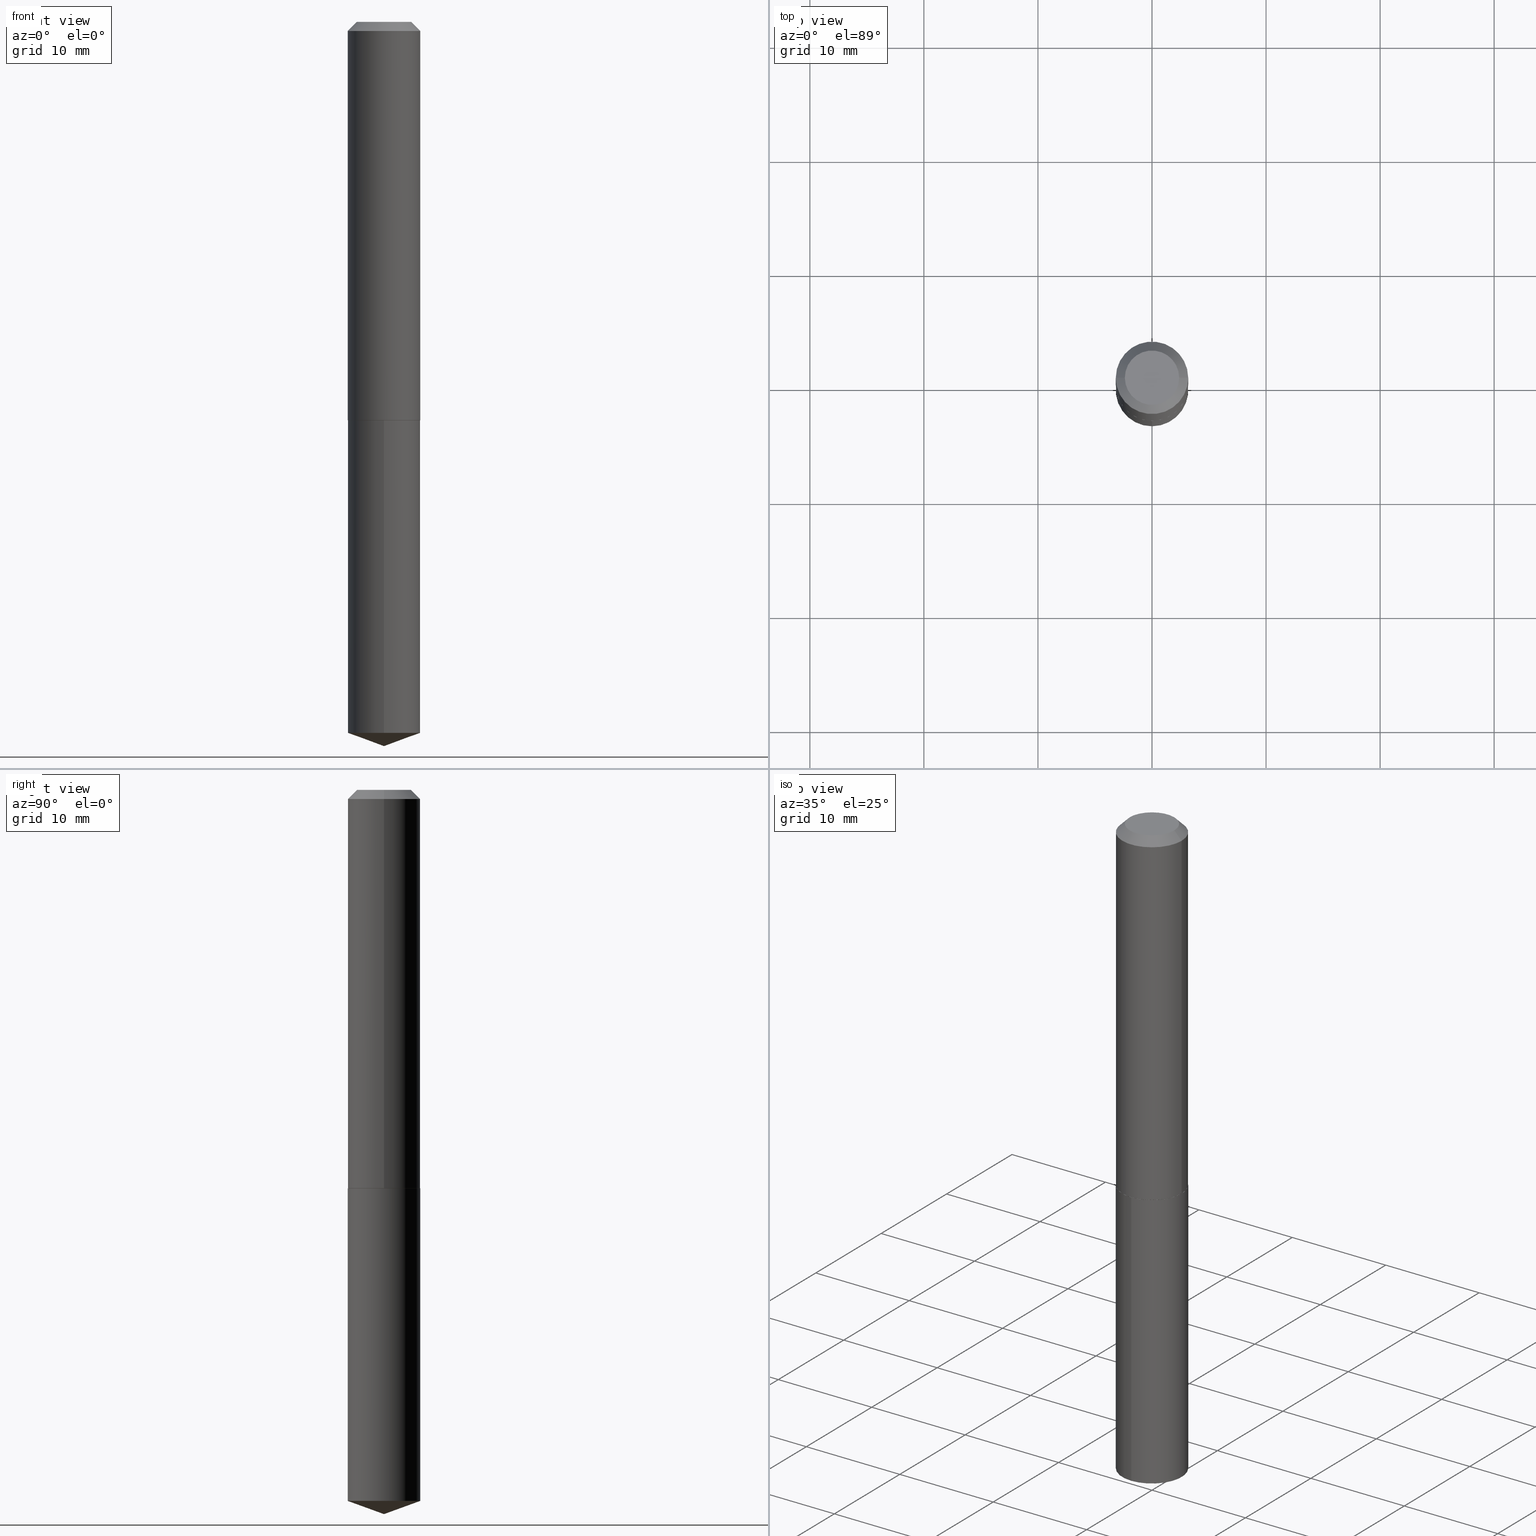
[diagram: canonical four-view strip — front | top / right | iso, engineering-drawing reading convention]
A machine part, canonical four-view strip (front | top / right | iso — engineering-drawing reading convention). The complete STEP part file that produces these views, byte-faithful:
ISO-10303-21;
HEADER;
FILE_DESCRIPTION (( 'STEP AP203' ),
    '1' );
FILE_NAME ('56148.STEP',
    '2024-04-22T20:42:17',
    ( '' ),
    ( '' ),
    'SwSTEP 2.0',
    'SolidWorks 2023',
    '' );
FILE_SCHEMA (( 'CONFIG_CONTROL_DESIGN' ));
ENDSEC;

DATA;
#1 = EDGE_LOOP ( 'NONE', ( #330, #33, #178, #58 ) ) ;
#2 = CARTESIAN_POINT ( 'NONE',  ( 7.642090019328604414E-31, -1.091087918388490513E-16, -0.03125000000000021511 ) ) ;
#3 = ORIENTED_EDGE ( 'NONE', *, *, #55, .F. ) ;
#4 = DIRECTION ( 'NONE',  ( -2.445468806185136597E-29, 3.491481338843145583E-15, 1.000000000000000000 ) ) ;
#5 = CARTESIAN_POINT ( 'NONE',  ( -2.335971725809276970E-47, 3.335148527799642567E-33, 9.552245033349363524E-19 ) ) ;
#6 = CARTESIAN_POINT ( 'NONE',  ( 0.1250000000000000000, -9.819791265496324395E-16, -0.03125000000000021511 ) ) ;
#7 = ADVANCED_FACE ( 'NONE', ( #240 ), #275, .F. ) ;
#8 = CARTESIAN_POINT ( 'NONE',  ( 6.113592622135694215E-29, -8.728817042871128141E-15, -2.500000000000000000 ) ) ;
#9 = DIRECTION ( 'NONE',  ( -1.000000000000000000, 6.982962677686265922E-15, -4.876176775795935793E-29 ) ) ;
#10 = ORIENTED_EDGE ( 'NONE', *, *, #172, .F. ) ;
#11 = DIRECTION ( 'NONE',  ( -2.445468806185136597E-29, 3.491481338843145583E-15, 1.000000000000000000 ) ) ;
#12 = CONICAL_SURFACE ( 'NONE', #144, 0.1250000000000000000, 0.7853981633974449483 ) ;
#13 = CARTESIAN_POINT ( 'NONE',  ( -9.016341287902560460E-28, 1.287329312043046058E-13, 36.87007874015748143 ) ) ;
#14 = CC_DESIGN_DATE_AND_TIME_ASSIGNMENT ( #349, #387, ( #42 ) ) ;
#15 = DIRECTION ( 'NONE',  ( 1.000000000000000000, -6.982962677686269077E-15, 0.000000000000000000 ) ) ;
#16 = AXIS2_PLACEMENT_3D ( 'NONE', #323, #201, #88 ) ;
#17 = AXIS2_PLACEMENT_3D ( 'NONE', #139, #117, #350 ) ;
#18 = CARTESIAN_POINT ( 'NONE',  ( 8.881784197001587589E-16, 0.1249999999999951983, -1.375000000000000444 ) ) ;
#19 = AXIS2_PLACEMENT_3D ( 'NONE', #101, #11, #99 ) ;
#20 = COORDINATED_UNIVERSAL_TIME_OFFSET ( 5, 0, .BEHIND. ) ;
#21 = ORIENTED_EDGE ( 'NONE', *, *, #246, .F. ) ;
#22 = CARTESIAN_POINT ( 'NONE',  ( -0.1250000000000000833, 8.881784197001258240E-16, -6.148668862818636431E-30 ) ) ;
#23 = LINE ( 'NONE', #72, #357 ) ;
#24 = PERSON_AND_ORGANIZATION ( #28, #232 ) ;
#25 = ORIENTED_EDGE ( 'NONE', *, *, #192, .F. ) ;
#26 = CC_DESIGN_APPROVAL ( #31, ( #327 ) ) ;
#27 = LINE ( 'NONE', #197, #36 ) ;
#28 = PERSON ( 'UNSPECIFIED', 'UNSPECIFIED', 'UNSPECIFIED', ('UNSPECIFIED'), ('UNSPECIFIED'), ('UNSPECIFIED') ) ;
#29 = AXIS2_PLACEMENT_3D ( 'NONE', #312, #256, #140 ) ;
#30 = FACE_OUTER_BOUND ( 'NONE', #1, .T. ) ;
#31 = APPROVAL ( #345, 'UNSPECIFIED' ) ;
#32 = ORIENTED_EDGE ( 'NONE', *, *, #187, .T. ) ;
#33 = ORIENTED_EDGE ( 'NONE', *, *, #55, .T. ) ;
#34 = VERTEX_POINT ( 'NONE', #35 ) ;
#35 = CARTESIAN_POINT ( 'NONE',  ( -0.09374999999999998612, 7.092071469525108711E-16, 9.552245033301675573E-19 ) ) ;
#36 = VECTOR ( 'NONE', #291, 39.37007874015748143 ) ;
#37 = AXIS2_PLACEMENT_3D ( 'NONE', #279, #316, #271 ) ;
#38 = DIRECTION ( 'NONE',  ( -6.982962677686268288E-15, -1.000000000000000000, 3.475157955500700492E-15 ) ) ;
#39 = DIRECTION ( 'NONE',  ( 2.445468806185136597E-29, -3.491481338843145583E-15, -1.000000000000000000 ) ) ;
#40 = CARTESIAN_POINT ( 'NONE',  ( -1.167985862904638485E-47, 1.667574263899821283E-33, 4.776122516674681762E-19 ) ) ;
#41 = DIRECTION ( 'NONE',  ( -6.982962677686268288E-15, -1.000000000000000000, 3.475157955500700492E-15 ) ) ;
#42 = SECURITY_CLASSIFICATION ( '', '', #198 ) ;
#43 = DIRECTION ( 'NONE',  ( 1.000000000000000000, -6.982962677686269077E-15, 0.000000000000000000 ) ) ;
#44 = EDGE_CURVE ( 'NONE', #136, #95, #190, .T. ) ;
#45 = PERSON_AND_ORGANIZATION ( #28, #232 ) ;
#46 = CC_DESIGN_DATE_AND_TIME_ASSIGNMENT ( #108, #131, ( #327 ) ) ;
#47 = CIRCLE ( 'NONE', #166, 0.1250000000000000000 ) ;
#48 = LINE ( 'NONE', #75, #338 ) ;
#49 = CLOSED_SHELL ( 'NONE', ( #124, #332, #238, #343, #7 ) ) ;
#50 = DATE_AND_TIME ( #322, #374 ) ;
#51 = ORIENTED_EDGE ( 'NONE', *, *, #372, .T. ) ;
#52 = EDGE_CURVE ( 'NONE', #365, #173, #56, .T. ) ;
#53 = AXIS2_PLACEMENT_3D ( 'NONE', #163, #281, #15 ) ;
#54 = PERSON_AND_ORGANIZATION ( #28, #232 ) ;
#55 = EDGE_CURVE ( 'NONE', #116, #228, #355, .T. ) ;
#56 = CIRCLE ( 'NONE', #128, 0.1250000000000001665 ) ;
#57 = VERTEX_POINT ( 'NONE', #352 ) ;
#58 = ORIENTED_EDGE ( 'NONE', *, *, #52, .F. ) ;
#59 = CONICAL_SURFACE ( 'NONE', #130, 108.1684023407340760, 1.221730476396033493 ) ;
#60 = LOCAL_TIME ( 16, 42, 17.00000000000000000, #285 ) ;
#61 = ORIENTED_EDGE ( 'NONE', *, *, #109, .F. ) ;
#62 = PRODUCT_DEFINITION_SHAPE ( 'NONE', 'NONE',  #327 ) ;
#63 = DIRECTION ( 'NONE',  ( 1.000000000000000000, -6.982962677686266711E-15, 4.876115938594587387E-29 ) ) ;
#64 = ORIENTED_EDGE ( 'NONE', *, *, #282, .F. ) ;
#65 = CARTESIAN_POINT ( 'NONE',  ( 0.000000000000000000, 0.000000000000000000, 0.000000000000000000 ) ) ;
#66 = CARTESIAN_POINT ( 'NONE',  ( 0.1245000000000002632, -5.670165694281267628E-15, -1.375000000000000000 ) ) ;
#67 = CIRCLE ( 'NONE', #284, 0.1250000000000000000 ) ;
#68 = EDGE_CURVE ( 'NONE', #270, #57, #27, .T. ) ;
#69 = VECTOR ( 'NONE', #102, 39.37007874015748143 ) ;
#70 = ORIENTED_EDGE ( 'NONE', *, *, #77, .F. ) ;
#71 = DIRECTION ( 'NONE',  ( 2.445437048854276901E-29, -3.491526817148451177E-15, -1.000000000000000000 ) ) ;
#72 = CARTESIAN_POINT ( 'NONE',  ( -0.1250000000000001665, -3.910862680539777405E-15, -1.374500000000000055 ) ) ;
#73 = ORIENTED_EDGE ( 'NONE', *, *, #44, .F. ) ;
#74 =( LENGTH_UNIT ( ) NAMED_UNIT ( * ) SI_UNIT ( $, .METRE. ) );
#75 = CARTESIAN_POINT ( 'NONE',  ( 0.1250000000000000833, -8.728703347107839305E-16, 6.095220969744923945E-30 ) ) ;
#76 = CALENDAR_DATE ( 2024, 22, 4 ) ;
#77 = EDGE_CURVE ( 'NONE', #333, #270, #137, .T. ) ;
#78 = CONICAL_SURFACE ( 'NONE', #286, 0.1250000000000000000, 0.7853981633974449483 ) ;
#79 = APPROVAL_ROLE ( '' ) ;
#80 = CARTESIAN_POINT ( 'NONE',  ( 6.113592622135694215E-29, -8.728817042871129719E-15, -2.500000000000000000 ) ) ;
#81 = PERSON_AND_ORGANIZATION ( #28, #232 ) ;
#82 = ORIENTED_EDGE ( 'NONE', *, *, #192, .T. ) ;
#83 = EDGE_CURVE ( 'NONE', #57, #95, #182, .T. ) ;
#84 = EDGE_LOOP ( 'NONE', ( #119, #260 ) ) ;
#85 = DIRECTION ( 'NONE',  ( -2.445468806185136597E-29, 3.491481338843145583E-15, 1.000000000000000000 ) ) ;
#86 = EDGE_LOOP ( 'NONE', ( #25, #51, #146, #363 ) ) ;
#87 = CARTESIAN_POINT ( 'NONE',  ( 0.1250000000000000000, -9.666710415602905459E-16, -0.03125000000000021511 ) ) ;
#88 = DIRECTION ( 'NONE',  ( -6.982962677686265922E-15, -1.000000000000000000, 4.370956789862821150E-15 ) ) ;
#89 = EDGE_LOOP ( 'NONE', ( #147, #220, #206, #61 ) ) ;
#90 = VERTEX_POINT ( 'NONE', #360 ) ;
#91 = CYLINDRICAL_SURFACE ( 'NONE', #174, 0.1250000000000000000 ) ;
#92 = DIRECTION ( 'NONE',  ( -2.445437048854277462E-29, 3.491526817148451177E-15, 1.000000000000000000 ) ) ;
#93 = DIRECTION ( 'NONE',  ( -6.982962677686265922E-15, -1.000000000000000000, 4.370956789862821150E-15 ) ) ;
#94 = AXIS2_PLACEMENT_3D ( 'NONE', #226, #168, #191 ) ;
#95 = VERTEX_POINT ( 'NONE', #149 ) ;
#96 = DESIGN_CONTEXT ( 'detailed design', #207, 'design' ) ;
#97 = MANIFOLD_SOLID_BREP ( 'Body-Move/Copy2[2]', #326 ) ;
#98 = ORIENTED_EDGE ( 'NONE', *, *, #372, .F. ) ;
#99 = DIRECTION ( 'NONE',  ( 1.000000000000000000, -6.982962677686266711E-15, 0.000000000000000000 ) ) ;
#100 = APPROVAL_PERSON_ORGANIZATION ( #264, #31, #344 ) ;
#101 = CARTESIAN_POINT ( 'NONE',  ( 7.642090019328604414E-31, -1.091087918388490513E-16, -0.03125000000000021511 ) ) ;
#102 = DIRECTION ( 'NONE',  ( -0.7071067811865451302, 2.468850131082231817E-15, -0.7071067811865499042 ) ) ;
#103 = DIRECTION ( 'NONE',  ( -0.7071067811865474617, 7.493145998870352582E-15, 0.7071067811865474617 ) ) ;
#104 = CALENDAR_DATE ( 2024, 22, 4 ) ;
#105 = ORIENTED_EDGE ( 'NONE', *, *, #370, .T. ) ;
#106 = APPROVAL_STATUS ( 'not_yet_approved' ) ;
#107 = AXIS2_PLACEMENT_3D ( 'NONE', #273, #121, #258 ) ;
#108 = DATE_AND_TIME ( #324, #171 ) ;
#109 = EDGE_CURVE ( 'NONE', #90, #388, #274, .T. ) ;
#110 = EDGE_CURVE ( 'NONE', #95, #57, #114, .T. ) ;
#111 = PERSON_AND_ORGANIZATION_ROLE ( 'creator' ) ;
#112 = ORIENTED_EDGE ( 'NONE', *, *, #68, .T. ) ;
#113 = EDGE_CURVE ( 'NONE', #270, #136, #67, .T. ) ;
#114 = CIRCLE ( 'NONE', #390, 0.1250000000000000000 ) ;
#115 = CARTESIAN_POINT ( 'NONE',  ( 3.361296874101470580E-29, -4.799041100239904215E-15, -1.374500000000000055 ) ) ;
#116 = VERTEX_POINT ( 'NONE', #244 ) ;
#117 = DIRECTION ( 'NONE',  ( 0.000000000000000000, 0.000000000000000000, 1.000000000000000000 ) ) ;
#118 = ORIENTED_EDGE ( 'NONE', *, *, #180, .T. ) ;
#119 = ORIENTED_EDGE ( 'NONE', *, *, #83, .T. ) ;
#120 = DIRECTION ( 'NONE',  ( 0.7071067811865451302, -7.319954787623248157E-15, -0.7071067811865499042 ) ) ;
#121 = DIRECTION ( 'NONE',  ( -2.445468806185136597E-29, 3.491481338843145583E-15, 1.000000000000000000 ) ) ;
#122 = PERSON_AND_ORGANIZATION ( #28, #232 ) ;
#123 = FACE_OUTER_BOUND ( 'NONE', #151, .T. ) ;
#124 = ADVANCED_FACE ( 'NONE', ( #368 ), #91, .T. ) ;
#125 = AXIS2_PLACEMENT_3D ( 'NONE', #179, #371, #93 ) ;
#126 = APPLICATION_PROTOCOL_DEFINITION ( 'international standard', 'config_control_design', 1994, #156 ) ;
#127 = CARTESIAN_POINT ( 'NONE',  ( -0.1250000000000001665, -3.910862680539777405E-15, -1.374500000000000055 ) ) ;
#128 = AXIS2_PLACEMENT_3D ( 'NONE', #133, #252, #43 ) ;
#129 = DIRECTION ( 'NONE',  ( 0.7071067811865474617, -2.468850131082256666E-15, 0.7071067811865474617 ) ) ;
#130 = AXIS2_PLACEMENT_3D ( 'NONE', #13, #311, #41 ) ;
#131 = DATE_TIME_ROLE ( 'creation_date' ) ;
#132 = EDGE_LOOP ( 'NONE', ( #334, #300, #10 ) ) ;
#133 = CARTESIAN_POINT ( 'NONE',  ( 3.361296874101470580E-29, -4.799041100239904215E-15, -1.374500000000000055 ) ) ;
#134 = ORIENTED_EDGE ( 'NONE', *, *, #187, .F. ) ;
#135 = PERSON_AND_ORGANIZATION_ROLE ( 'design_owner' ) ;
#136 = VERTEX_POINT ( 'NONE', #283 ) ;
#137 = LINE ( 'NONE', #80, #255 ) ;
#138 = COORDINATED_UNIVERSAL_TIME_OFFSET ( 5, 0, .BEHIND. ) ;
#139 = CARTESIAN_POINT ( 'NONE',  ( 0.000000000000000000, 0.000000000000000000, 0.000000000000000000 ) ) ;
#140 = DIRECTION ( 'NONE',  ( 1.000000000000000000, -6.982962677686267499E-15, 0.000000000000000000 ) ) ;
#141 = APPLICATION_PROTOCOL_DEFINITION ( 'international standard', 'config_control_design', 1994, #207 ) ;
#142 = CC_DESIGN_PERSON_AND_ORGANIZATION_ASSIGNMENT ( #122, #135, ( #314 ) ) ;
#143 = EDGE_LOOP ( 'NONE', ( #105, #294, #21, #243 ) ) ;
#144 = AXIS2_PLACEMENT_3D ( 'NONE', #290, #341, #158 ) ;
#145 = APPROVAL_PERSON_ORGANIZATION ( #81, #378, #79 ) ;
#146 = ORIENTED_EDGE ( 'NONE', *, *, #246, .T. ) ;
#147 = ORIENTED_EDGE ( 'NONE', *, *, #263, .F. ) ;
#148 = CYLINDRICAL_SURFACE ( 'NONE', #373, 0.1250000000000000833 ) ;
#149 = CARTESIAN_POINT ( 'NONE',  ( 8.881784197001853830E-16, 0.1249999999999951983, -1.375000000000000444 ) ) ;
#150 = CC_DESIGN_PERSON_AND_ORGANIZATION_ASSIGNMENT ( #321, #266, ( #348 ) ) ;
#151 = EDGE_LOOP ( 'NONE', ( #73, #358, #112, #268 ) ) ;
#152 = DIRECTION ( 'NONE',  ( 1.000000000000000000, -6.982962677686266711E-15, 4.876115938594587387E-29 ) ) ;
#153 = AXIS2_PLACEMENT_3D ( 'NONE', #40, #280, #9 ) ;
#154 = FACE_OUTER_BOUND ( 'NONE', #143, .T. ) ;
#155 = AXIS2_PLACEMENT_3D ( 'NONE', #313, #335, #152 ) ;
#156 = APPLICATION_CONTEXT ( 'configuration controlled 3d designs of mechanical parts and assemblies' ) ;
#157 = DIRECTION ( 'NONE',  ( -1.000000000000000000, 6.982962677686266711E-15, 0.000000000000000000 ) ) ;
#158 = DIRECTION ( 'NONE',  ( -1.000000000000000000, 6.982962677686266711E-15, 0.000000000000000000 ) ) ;
#159 = DIRECTION ( 'NONE',  ( -6.982962677686265922E-15, -1.000000000000000000, 4.370956789862821150E-15 ) ) ;
#160 = EDGE_LOOP ( 'NONE', ( #70, #118, #223 ) ) ;
#161 = CARTESIAN_POINT ( 'NONE',  ( 3.362519608504562260E-29, -4.800786840909324930E-15, -1.375000000000000000 ) ) ;
#162 = PLANE ( 'NONE',  #153 ) ;
#163 = CARTESIAN_POINT ( 'NONE',  ( 3.361296874101470580E-29, -4.799041100239904215E-15, -1.374500000000000055 ) ) ;
#164 = FACE_OUTER_BOUND ( 'NONE', #231, .T. ) ;
#165 = PERSON_AND_ORGANIZATION_ROLE ( 'classification_officer' ) ;
#166 = AXIS2_PLACEMENT_3D ( 'NONE', #224, #253, #381 ) ;
#167 = AXIS2_PLACEMENT_3D ( 'NONE', #183, #305, #38 ) ;
#168 = DIRECTION ( 'NONE',  ( -2.445468806185136597E-29, 3.491481338843145583E-15, 1.000000000000000000 ) ) ;
#169 = LINE ( 'NONE', #342, #184 ) ;
#170 = APPROVAL_DATE_TIME ( #50, #378 ) ;
#171 = LOCAL_TIME ( 16, 42, 17.00000000000000000, #318 ) ;
#172 = EDGE_CURVE ( 'NONE', #136, #270, #47, .T. ) ;
#173 = VERTEX_POINT ( 'NONE', #375 ) ;
#174 = AXIS2_PLACEMENT_3D ( 'NONE', #351, #385, #159 ) ;
#175 = ORIENTED_EDGE ( 'NONE', *, *, #216, .F. ) ;
#176 = FACE_OUTER_BOUND ( 'NONE', #89, .T. ) ;
#177 = EDGE_CURVE ( 'NONE', #173, #388, #48, .T. ) ;
#178 = ORIENTED_EDGE ( 'NONE', *, *, #282, .T. ) ;
#179 = CARTESIAN_POINT ( 'NONE',  ( 3.362519608504562260E-29, -4.800786840909324930E-15, -1.375000000000000000 ) ) ;
#180 = EDGE_CURVE ( 'NONE', #333, #136, #169, .T. ) ;
#181 = PLANE ( 'NONE',  #37 ) ;
#182 = CIRCLE ( 'NONE', #16, 0.1250000000000000000 ) ;
#183 = CARTESIAN_POINT ( 'NONE',  ( -9.016341287902560460E-28, 1.287329312043046058E-13, 36.87007874015748143 ) ) ;
#184 = VECTOR ( 'NONE', #317, 39.37007874015748143 ) ;
#185 = EDGE_CURVE ( 'NONE', #116, #365, #23, .T. ) ;
#186 = DIMENSIONAL_EXPONENTS ( 1.000000000000000000, 0.000000000000000000, 0.000000000000000000, 0.000000000000000000, 0.000000000000000000, 0.000000000000000000, 0.000000000000000000 ) ;
#187 = EDGE_CURVE ( 'NONE', #228, #116, #267, .T. ) ;
#188 =( NAMED_UNIT ( * ) SI_UNIT ( $, .STERADIAN. ) SOLID_ANGLE_UNIT ( ) );
#189 = LOCAL_TIME ( 16, 42, 17.00000000000000000, #234 ) ;
#190 = LINE ( 'NONE', #18, #219 ) ;
#191 = DIRECTION ( 'NONE',  ( 1.000000000000000000, -6.982962677686267499E-15, 0.000000000000000000 ) ) ;
#192 = EDGE_CURVE ( 'NONE', #353, #34, #319, .T. ) ;
#193 = FACE_OUTER_BOUND ( 'NONE', #132, .T. ) ;
#194 = CALENDAR_DATE ( 2024, 22, 4 ) ;
#195 = DIRECTION ( 'NONE',  ( -2.445437048854277742E-29, 3.491526817148451177E-15, 1.000000000000000000 ) ) ;
#196 = APPROVAL_DATE_TIME ( #227, #367 ) ;
#197 = CARTESIAN_POINT ( 'NONE',  ( -8.728703347107496150E-16, -0.1250000000000048017, -1.374999999999999334 ) ) ;
#198 = SECURITY_CLASSIFICATION_LEVEL ( 'unclassified' ) ;
#199 = FACE_OUTER_BOUND ( 'NONE', #160, .T. ) ;
#200 = DIRECTION ( 'NONE',  ( -6.561838499445207162E-15, -0.9396926207859082059, 0.3420201433256693790 ) ) ;
#201 = DIRECTION ( 'NONE',  ( -2.445437048854277462E-29, 3.491526817148451177E-15, 1.000000000000000000 ) ) ;
#202 = DATE_AND_TIME ( #194, #189 ) ;
#203 = VECTOR ( 'NONE', #129, 39.37007874015748854 ) ;
#204 = ORIENTED_EDGE ( 'NONE', *, *, #83, .F. ) ;
#205 = AXIS2_PLACEMENT_3D ( 'NONE', #5, #209, #63 ) ;
#206 = ORIENTED_EDGE ( 'NONE', *, *, #177, .T. ) ;
#207 = APPLICATION_CONTEXT ( 'configuration controlled 3d designs of mechanical parts and assemblies' ) ;
#208 = EDGE_LOOP ( 'NONE', ( #32, #307, #329, #64 ) ) ;
#209 = DIRECTION ( 'NONE',  ( -2.445468806185136597E-29, 3.491481338843145583E-15, 1.000000000000000000 ) ) ;
#210 = DIRECTION ( 'NONE',  ( -6.982962677686265922E-15, -1.000000000000000000, 4.370956789862821150E-15 ) ) ;
#211 = ORIENTED_EDGE ( 'NONE', *, *, #113, .T. ) ;
#212 = DIRECTION ( 'NONE',  ( 1.000000000000000000, -6.982962677686269077E-15, 0.000000000000000000 ) ) ;
#213 = FACE_OUTER_BOUND ( 'NONE', #340, .T. ) ;
#214 = DIRECTION ( 'NONE',  ( -6.982962677686265922E-15, -1.000000000000000000, 4.370956789862821150E-15 ) ) ;
#215 = FACE_OUTER_BOUND ( 'NONE', #86, .T. ) ;
#216 = EDGE_CURVE ( 'NONE', #34, #353, #379, .T. ) ;
#217 = AXIS2_PLACEMENT_3D ( 'NONE', #161, #71, #302 ) ;
#218 = CARTESIAN_POINT ( 'NONE',  ( 0.09374999999999998612, -8.049213644256857164E-16, 9.552245033400394890E-19 ) ) ;
#219 = VECTOR ( 'NONE', #195, 39.37007874015748143 ) ;
#220 = ORIENTED_EDGE ( 'NONE', *, *, #52, .T. ) ;
#221 =( CONVERSION_BASED_UNIT ( 'INCH', #278 ) LENGTH_UNIT ( ) NAMED_UNIT ( #186 ) );
#222 = ADVANCED_FACE ( 'NONE', ( #176 ), #148, .T. ) ;
#223 = ORIENTED_EDGE ( 'NONE', *, *, #113, .F. ) ;
#224 = CARTESIAN_POINT ( 'NONE',  ( 6.002378001521283483E-29, -8.569903031003303403E-15, -2.454503720716725290 ) ) ;
#225 = ADVANCED_FACE ( 'NONE', ( #213 ), #181, .F. ) ;
#226 = CARTESIAN_POINT ( 'NONE',  ( 3.362519608504562260E-29, -4.800786840909324930E-15, -1.375000000000000000 ) ) ;
#227 = DATE_AND_TIME ( #76, #249 ) ;
#228 = VERTEX_POINT ( 'NONE', #66 ) ;
#229 = ADVANCED_FACE ( 'NONE', ( #336 ), #12, .T. ) ;
#230 = PERSON_AND_ORGANIZATION ( #28, #232 ) ;
#231 = EDGE_LOOP ( 'NONE', ( #269, #82 ) ) ;
#232 = ORGANIZATION ( 'UNSPECIFIED', 'UNSPECIFIED', '' ) ;
#233 = MECHANICAL_CONTEXT ( 'NONE', #156, 'mechanical' ) ;
#234 = COORDINATED_UNIVERSAL_TIME_OFFSET ( 5, 0, .BEHIND. ) ;
#235 = PRODUCT_RELATED_PRODUCT_CATEGORY ( 'detail', '', ( #314 ) ) ;
#236 = AXIS2_PLACEMENT_3D ( 'NONE', #2, #85, #369 ) ;
#237 = AXIS2_PLACEMENT_3D ( 'NONE', #115, #239, #362 ) ;
#238 = ADVANCED_FACE ( 'NONE', ( #193 ), #59, .T. ) ;
#239 = DIRECTION ( 'NONE',  ( -2.445468806185136597E-29, 3.491481338843145583E-15, 1.000000000000000000 ) ) ;
#240 = FACE_OUTER_BOUND ( 'NONE', #84, .T. ) ;
#241 = CARTESIAN_POINT ( 'NONE',  ( 3.362519608504562260E-29, -4.800786840909324930E-15, -1.375000000000000000 ) ) ;
#242 = EDGE_LOOP ( 'NONE', ( #98, #175, #366, #376 ) ) ;
#243 = ORIENTED_EDGE ( 'NONE', *, *, #177, .F. ) ;
#244 = CARTESIAN_POINT ( 'NONE',  ( -0.1245000000000002632, -3.913511907713887817E-15, -1.375000000000000000 ) ) ;
#245 = DIRECTION ( 'NONE',  ( 1.000000000000000000, -6.982962677686266711E-15, 4.876176775795935793E-29 ) ) ;
#246 = EDGE_CURVE ( 'NONE', #388, #90, #306, .T. ) ;
#247 = CYLINDRICAL_SURFACE ( 'NONE', #125, 0.1250000000000000000 ) ;
#248 = LINE ( 'NONE', #22, #377 ) ;
#249 = LOCAL_TIME ( 16, 42, 17.00000000000000000, #138 ) ;
#250 = UNCERTAINTY_MEASURE_WITH_UNIT (LENGTH_MEASURE( 1.000000000000000082E-05 ), #221, 'distance_accuracy_value', 'NONE');
#251 = ADVANCED_FACE ( 'NONE', ( #164 ), #162, .F. ) ;
#252 = DIRECTION ( 'NONE',  ( -2.445468806185136597E-29, 3.491481338843145583E-15, 1.000000000000000000 ) ) ;
#253 = DIRECTION ( 'NONE',  ( -2.445437048854277462E-29, 3.491526817148451177E-15, 1.000000000000000000 ) ) ;
#254 = LINE ( 'NONE', #87, #356 ) ;
#255 = VECTOR ( 'NONE', #200, 39.37007874015748854 ) ;
#256 = DIRECTION ( 'NONE',  ( -2.445468806185136597E-29, 3.491481338843145583E-15, 1.000000000000000000 ) ) ;
#257 = CC_DESIGN_PERSON_AND_ORGANIZATION_ASSIGNMENT ( #54, #111, ( #327 ) ) ;
#258 = DIRECTION ( 'NONE',  ( 1.000000000000000000, -6.982962677686266711E-15, 4.876176775795935793E-29 ) ) ;
#259 = PERSON_AND_ORGANIZATION_ROLE ( 'creator' ) ;
#260 = ORIENTED_EDGE ( 'NONE', *, *, #110, .T. ) ;
#261 = LINE ( 'NONE', #287, #203 ) ;
#262 = SHAPE_DEFINITION_REPRESENTATION ( #62, #315 ) ;
#263 = EDGE_CURVE ( 'NONE', #365, #90, #248, .T. ) ;
#264 = PERSON_AND_ORGANIZATION ( #28, #232 ) ;
#265 = EDGE_CURVE ( 'NONE', #34, #90, #295, .T. ) ;
#266 = PERSON_AND_ORGANIZATION_ROLE ( 'design_supplier' ) ;
#267 = CIRCLE ( 'NONE', #94, 0.1245000000000002632 ) ;
#268 = ORIENTED_EDGE ( 'NONE', *, *, #110, .F. ) ;
#269 = ORIENTED_EDGE ( 'NONE', *, *, #216, .T. ) ;
#270 = VERTEX_POINT ( 'NONE', #346 ) ;
#271 = DIRECTION ( 'NONE',  ( 1.000000000000000000, -6.982962677686265922E-15, 4.876176775795935793E-29 ) ) ;
#272 = CONICAL_SURFACE ( 'NONE', #304, 0.1250000000000001665, 0.7853981633974482790 ) ;
#273 = CARTESIAN_POINT ( 'NONE',  ( 0.000000000000000000, 0.000000000000000000, 0.000000000000000000 ) ) ;
#274 = CIRCLE ( 'NONE', #236, 0.1250000000000000000 ) ;
#275 = PLANE ( 'NONE',  #217 ) ;
#276 = DIRECTION ( 'NONE',  ( -2.445468806185136877E-29, 3.491481338843145188E-15, 1.000000000000000000 ) ) ;
#277 = CC_DESIGN_SECURITY_CLASSIFICATION ( #42, ( #348 ) ) ;
#278 = LENGTH_MEASURE_WITH_UNIT ( LENGTH_MEASURE( 0.02539999999999999897 ), #74 );
#279 = CARTESIAN_POINT ( 'NONE',  ( 3.362519608504562260E-29, -4.800786840909324930E-15, -1.375000000000000000 ) ) ;
#280 = DIRECTION ( 'NONE',  ( 2.438088387897960049E-29, -3.491481338843145188E-15, -1.000000000000000000 ) ) ;
#281 = DIRECTION ( 'NONE',  ( -2.445468806185136597E-29, 3.491481338843145583E-15, 1.000000000000000000 ) ) ;
#282 = EDGE_CURVE ( 'NONE', #228, #173, #261, .T. ) ;
#283 = CARTESIAN_POINT ( 'NONE',  ( 8.881784197001849886E-16, 0.1249999999999914235, -2.454503720716725734 ) ) ;
#284 = AXIS2_PLACEMENT_3D ( 'NONE', #337, #364, #210 ) ;
#285 = COORDINATED_UNIVERSAL_TIME_OFFSET ( 5, 0, .BEHIND. ) ;
#286 = AXIS2_PLACEMENT_3D ( 'NONE', #293, #39, #157 ) ;
#287 = CARTESIAN_POINT ( 'NONE',  ( 0.1250000000000001665, -5.671911434950688343E-15, -1.374500000000000055 ) ) ;
#288 = APPROVAL_ROLE ( '' ) ;
#289 = EDGE_LOOP ( 'NONE', ( #211, #383, #204, #298 ) ) ;
#290 = CARTESIAN_POINT ( 'NONE',  ( 7.642090019328604414E-31, -1.091087918388490513E-16, -0.03125000000000021511 ) ) ;
#291 = DIRECTION ( 'NONE',  ( -2.445437048854277742E-29, 3.491526817148451177E-15, 1.000000000000000000 ) ) ;
#292 = CC_DESIGN_APPROVAL ( #367, ( #348 ) ) ;
#293 = CARTESIAN_POINT ( 'NONE',  ( 7.642090019328604414E-31, -1.091087918388490513E-16, -0.03125000000000021511 ) ) ;
#294 = ORIENTED_EDGE ( 'NONE', *, *, #263, .T. ) ;
#295 = LINE ( 'NONE', #380, #69 ) ;
#296 = CC_DESIGN_PERSON_AND_ORGANIZATION_ASSIGNMENT ( #24, #165, ( #42 ) ) ;
#297 = CONICAL_SURFACE ( 'NONE', #237, 0.1250000000000001665, 0.7853981633974482790 ) ;
#298 = ORIENTED_EDGE ( 'NONE', *, *, #68, .F. ) ;
#299 = DIRECTION ( 'NONE',  ( -2.445468806185136597E-29, 3.491481338843145583E-15, 1.000000000000000000 ) ) ;
#300 = ORIENTED_EDGE ( 'NONE', *, *, #77, .T. ) ;
#301 = CYLINDRICAL_SURFACE ( 'NONE', #107, 0.1250000000000000833 ) ;
#302 = DIRECTION ( 'NONE',  ( 6.982962677686265922E-15, 1.000000000000000000, -3.491526817148451177E-15 ) ) ;
#303 = ADVANCED_FACE ( 'NONE', ( #30 ), #297, .T. ) ;
#304 = AXIS2_PLACEMENT_3D ( 'NONE', #359, #299, #212 ) ;
#305 = DIRECTION ( 'NONE',  ( -2.445437048854277462E-29, 3.491526817148451177E-15, 1.000000000000000000 ) ) ;
#306 = CIRCLE ( 'NONE', #19, 0.1250000000000000000 ) ;
#307 = ORIENTED_EDGE ( 'NONE', *, *, #185, .T. ) ;
#308 = ADVANCED_FACE ( 'NONE', ( #215 ), #78, .T. ) ;
#309 =( NAMED_UNIT ( * ) PLANE_ANGLE_UNIT ( ) SI_UNIT ( $, .RADIAN. ) );
#310 =( GEOMETRIC_REPRESENTATION_CONTEXT ( 3 ) GLOBAL_UNCERTAINTY_ASSIGNED_CONTEXT ( ( #250 ) ) GLOBAL_UNIT_ASSIGNED_CONTEXT ( ( #221, #309, #188 ) ) REPRESENTATION_CONTEXT ( 'NONE', 'WORKASPACE' ) );
#311 = DIRECTION ( 'NONE',  ( -2.445437048854277462E-29, 3.491526817148451177E-15, 1.000000000000000000 ) ) ;
#312 = CARTESIAN_POINT ( 'NONE',  ( 3.362519608504562260E-29, -4.800786840909324930E-15, -1.375000000000000000 ) ) ;
#313 = CARTESIAN_POINT ( 'NONE',  ( -2.335971725809276970E-47, 3.335148527799642567E-33, 9.552245033349363524E-19 ) ) ;
#314 = PRODUCT ( '56148', '56148', '', ( #233 ) ) ;
#315 = ADVANCED_BREP_SHAPE_REPRESENTATION ( '56148', ( #361, #97, #17 ), #310 ) ;
#316 = DIRECTION ( 'NONE',  ( -2.438088387897960049E-29, 3.491481338843145188E-15, 1.000000000000000000 ) ) ;
#317 = DIRECTION ( 'NONE',  ( 6.676917655467974440E-15, 0.9396926207859105373, 0.3420201433256628287 ) ) ;
#318 = COORDINATED_UNIVERSAL_TIME_OFFSET ( 5, 0, .BEHIND. ) ;
#319 = CIRCLE ( 'NONE', #155, 0.09374999999999998612 ) ;
#320 = DIRECTION ( 'NONE',  ( -2.445468806185136877E-29, 3.491481338843145188E-15, 1.000000000000000000 ) ) ;
#321 = PERSON_AND_ORGANIZATION ( #28, #232 ) ;
#322 = CALENDAR_DATE ( 2024, 22, 4 ) ;
#323 = CARTESIAN_POINT ( 'NONE',  ( 3.362519608504562260E-29, -4.800786840909324930E-15, -1.375000000000000000 ) ) ;
#324 = CALENDAR_DATE ( 2024, 22, 4 ) ;
#325 = APPROVAL_PERSON_ORGANIZATION ( #45, #367, #288 ) ;
#326 = CLOSED_SHELL ( 'NONE', ( #308, #354, #384, #225, #303, #222, #229, #251 ) ) ;
#327 = PRODUCT_DEFINITION ( 'UNKNOWN', '', #348, #96 ) ;
#328 = CC_DESIGN_APPROVAL ( #378, ( #42 ) ) ;
#329 = ORIENTED_EDGE ( 'NONE', *, *, #370, .F. ) ;
#330 = ORIENTED_EDGE ( 'NONE', *, *, #185, .F. ) ;
#331 = FACE_OUTER_BOUND ( 'NONE', #208, .T. ) ;
#332 = ADVANCED_FACE ( 'NONE', ( #199 ), #347, .T. ) ;
#333 = VERTEX_POINT ( 'NONE', #8 ) ;
#334 = ORIENTED_EDGE ( 'NONE', *, *, #180, .F. ) ;
#335 = DIRECTION ( 'NONE',  ( -2.445468806185136597E-29, 3.491481338843145583E-15, 1.000000000000000000 ) ) ;
#336 = FACE_OUTER_BOUND ( 'NONE', #242, .T. ) ;
#337 = CARTESIAN_POINT ( 'NONE',  ( 6.002378001521283483E-29, -8.569903031003303403E-15, -2.454503720716725290 ) ) ;
#338 = VECTOR ( 'NONE', #320, 39.37007874015748143 ) ;
#339 = CIRCLE ( 'NONE', #53, 0.1250000000000001665 ) ;
#340 = EDGE_LOOP ( 'NONE', ( #134, #3 ) ) ;
#341 = DIRECTION ( 'NONE',  ( 2.445468806185136597E-29, -3.491481338843145583E-15, -1.000000000000000000 ) ) ;
#342 = CARTESIAN_POINT ( 'NONE',  ( 6.113680720599896185E-29, -8.728691977531537361E-15, -2.500000000000000000 ) ) ;
#343 = ADVANCED_FACE ( 'NONE', ( #123 ), #247, .T. ) ;
#344 = APPROVAL_ROLE ( '' ) ;
#345 = APPROVAL_STATUS ( 'not_yet_approved' ) ;
#346 = CARTESIAN_POINT ( 'NONE',  ( -8.728703347107231882E-16, -0.1250000000000085487, -2.454503720716724846 ) ) ;
#347 = CONICAL_SURFACE ( 'NONE', #167, 108.1684023407340760, 1.221730476396033493 ) ;
#348 = PRODUCT_DEFINITION_FORMATION_WITH_SPECIFIED_SOURCE ( 'ANY', '', #314, .NOT_KNOWN. ) ;
#349 = DATE_AND_TIME ( #104, #60 ) ;
#350 = DIRECTION ( 'NONE',  ( 1.000000000000000000, 0.000000000000000000, 0.000000000000000000 ) ) ;
#351 = CARTESIAN_POINT ( 'NONE',  ( 3.362519608504562260E-29, -4.800786840909324930E-15, -1.375000000000000000 ) ) ;
#352 = CARTESIAN_POINT ( 'NONE',  ( -8.728703347107496150E-16, -0.1250000000000048017, -1.374999999999999334 ) ) ;
#353 = VERTEX_POINT ( 'NONE', #218 ) ;
#354 = ADVANCED_FACE ( 'NONE', ( #154 ), #301, .T. ) ;
#355 = CIRCLE ( 'NONE', #29, 0.1245000000000002632 ) ;
#356 = VECTOR ( 'NONE', #120, 39.37007874015748143 ) ;
#357 = VECTOR ( 'NONE', #103, 39.37007874015748854 ) ;
#358 = ORIENTED_EDGE ( 'NONE', *, *, #172, .T. ) ;
#359 = CARTESIAN_POINT ( 'NONE',  ( 3.361296874101470580E-29, -4.799041100239904215E-15, -1.374500000000000055 ) ) ;
#360 = CARTESIAN_POINT ( 'NONE',  ( -0.1250000000000000000, -1.565896526339250439E-15, -0.03125000000000021511 ) ) ;
#361 = MANIFOLD_SOLID_BREP ( 'Body-Move/Copy2[1]', #49 ) ;
#362 = DIRECTION ( 'NONE',  ( 1.000000000000000000, -6.982962677686269077E-15, 0.000000000000000000 ) ) ;
#363 = ORIENTED_EDGE ( 'NONE', *, *, #265, .F. ) ;
#364 = DIRECTION ( 'NONE',  ( -2.445437048854277462E-29, 3.491526817148451177E-15, 1.000000000000000000 ) ) ;
#365 = VERTEX_POINT ( 'NONE', #127 ) ;
#366 = ORIENTED_EDGE ( 'NONE', *, *, #265, .T. ) ;
#367 = APPROVAL ( #106, 'UNSPECIFIED' ) ;
#368 = FACE_OUTER_BOUND ( 'NONE', #289, .T. ) ;
#369 = DIRECTION ( 'NONE',  ( 1.000000000000000000, -6.982962677686266711E-15, 0.000000000000000000 ) ) ;
#370 = EDGE_CURVE ( 'NONE', #173, #365, #339, .T. ) ;
#371 = DIRECTION ( 'NONE',  ( -2.445437048854277462E-29, 3.491526817148451177E-15, 1.000000000000000000 ) ) ;
#372 = EDGE_CURVE ( 'NONE', #353, #388, #254, .T. ) ;
#373 = AXIS2_PLACEMENT_3D ( 'NONE', #65, #4, #245 ) ;
#374 = LOCAL_TIME ( 16, 42, 17.00000000000000000, #20 ) ;
#375 = CARTESIAN_POINT ( 'NONE',  ( 0.1250000000000001665, -5.671911434950688343E-15, -1.374500000000000055 ) ) ;
#376 = ORIENTED_EDGE ( 'NONE', *, *, #109, .T. ) ;
#377 = VECTOR ( 'NONE', #276, 39.37007874015748143 ) ;
#378 = APPROVAL ( #382, 'UNSPECIFIED' ) ;
#379 = CIRCLE ( 'NONE', #205, 0.09374999999999998612 ) ;
#380 = CARTESIAN_POINT ( 'NONE',  ( -0.1250000000000000000, 7.637615428719342382E-16, -0.03125000000000021511 ) ) ;
#381 = DIRECTION ( 'NONE',  ( -6.982962677686265922E-15, -1.000000000000000000, 4.370956789862821150E-15 ) ) ;
#382 = APPROVAL_STATUS ( 'not_yet_approved' ) ;
#383 = ORIENTED_EDGE ( 'NONE', *, *, #44, .T. ) ;
#384 = ADVANCED_FACE ( 'NONE', ( #331 ), #272, .T. ) ;
#385 = DIRECTION ( 'NONE',  ( -2.445437048854277462E-29, 3.491526817148451177E-15, 1.000000000000000000 ) ) ;
#386 = APPROVAL_DATE_TIME ( #202, #31 ) ;
#387 = DATE_TIME_ROLE ( 'classification_date' ) ;
#388 = VERTEX_POINT ( 'NONE', #6 ) ;
#389 = CC_DESIGN_PERSON_AND_ORGANIZATION_ASSIGNMENT ( #230, #259, ( #348 ) ) ;
#390 = AXIS2_PLACEMENT_3D ( 'NONE', #241, #92, #214 ) ;
ENDSEC;
END-ISO-10303-21;
